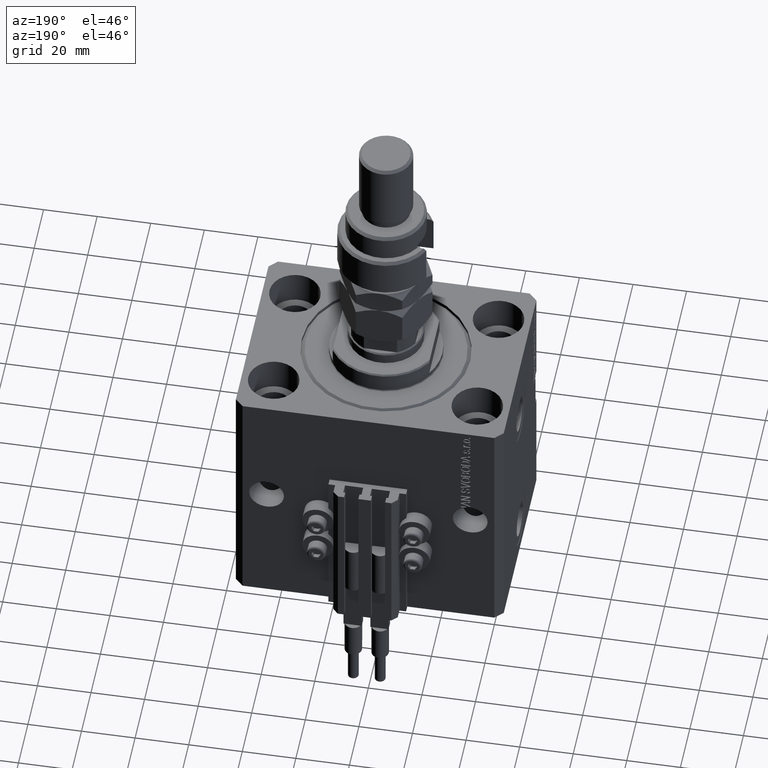
[diagram: clean part render]
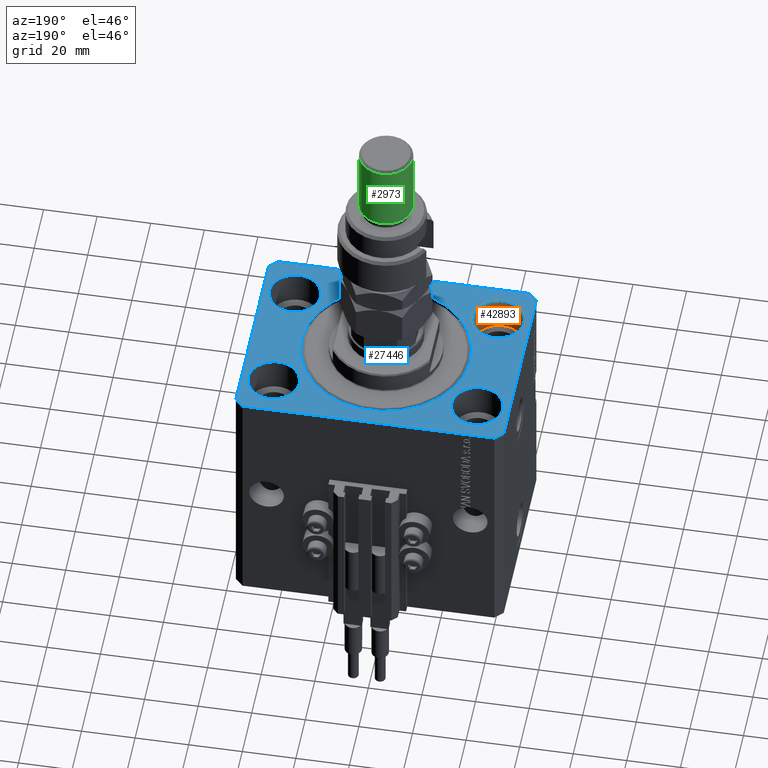
[diagram: same view with three faces highlighted in distinct colors, each labeled with its STEP entity id]
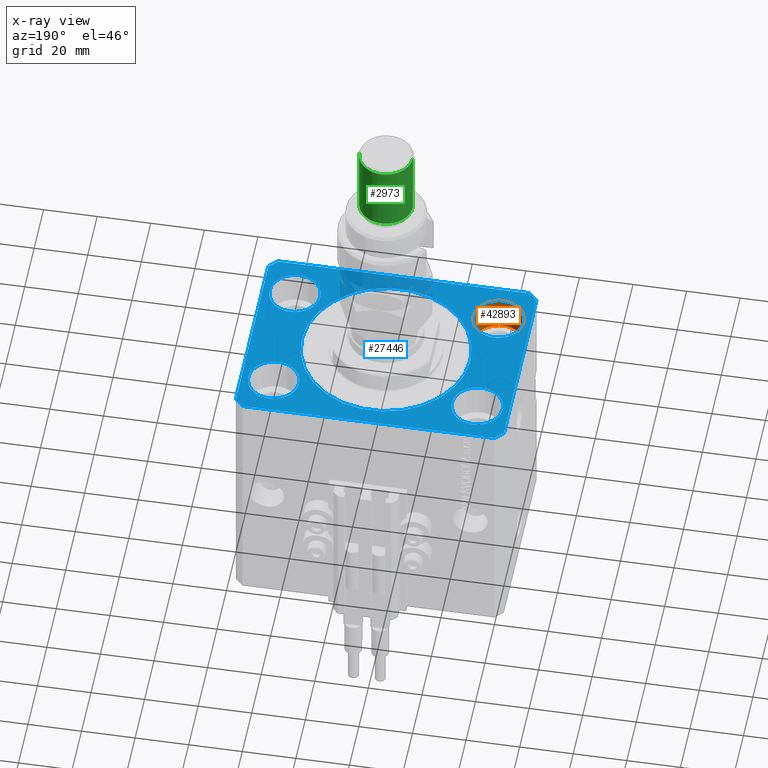
[diagram: x-ray of the same camera — body ghosted, the three highlighted faces saturated]
A machine part, auxiliary view with three faces highlighted in distinct colors.
The next image is the same camera in x-ray (body ghosted, the three faces saturated) — at least one of them is partly hidden behind the body in this view.
Their STEP definitions:

[orange] entity #42893 — the highlighted cylindrical surface (edge-blend (fillet) strip) has radius 9.5 mm, axis along (0, 0, 1).
#404 = CARTESIAN_POINT ( 'NONE',  ( -28.50000000000000355, -22.50000000000000000, -13.00000000000000000 ) ) ;
#1322 = CARTESIAN_POINT ( 'NONE',  ( -47.50000000000000711, -22.50000000000000000, 0.000000000000000000 ) ) ;
#7118 = EDGE_CURVE ( 'NONE', #12849, #47217, #32255, .T. ) ;
#7318 = CARTESIAN_POINT ( 'NONE',  ( -28.50000000000000355, -22.50000000000000000, 0.000000000000000000 ) ) ;
#9910 = AXIS2_PLACEMENT_3D ( 'NONE', #10055, #10308, #25871 ) ;
#10055 = CARTESIAN_POINT ( 'NONE',  ( -38.00000000000000711, -22.50000000000000000, 0.000000000000000000 ) ) ;
#10308 = DIRECTION ( 'NONE',  ( 0.000000000000000000, 0.000000000000000000, 1.000000000000000000 ) ) ;
#10961 = CIRCLE ( 'NONE', #20061, 9.500000000000001776 ) ;
#11100 = VECTOR ( 'NONE', #42899, 1000.000000000000000 ) ;
#11342 = CARTESIAN_POINT ( 'NONE',  ( -28.50000000000000355, -22.50000000000000000, -13.00000000000000000 ) ) ;
#12849 = VERTEX_POINT ( 'NONE', #1322 ) ;
#14329 = ORIENTED_EDGE ( 'NONE', *, *, #36053, .T. ) ;
#17175 = VECTOR ( 'NONE', #50529, 1000.000000000000000 ) ;
#18199 = DIRECTION ( 'NONE',  ( -0.000000000000000000, -0.000000000000000000, 1.000000000000000000 ) ) ;
#18747 = EDGE_CURVE ( 'NONE', #31884, #47217, #37789, .T. ) ;
#20061 = AXIS2_PLACEMENT_3D ( 'NONE', #48910, #29168, #41366 ) ;
#22663 = EDGE_LOOP ( 'NONE', ( #25023, #14329, #46926, #38348 ) ) ;
#22923 = LINE ( 'NONE', #35352, #11100 ) ;
#25023 = ORIENTED_EDGE ( 'NONE', *, *, #32462, .F. ) ;
#25871 = DIRECTION ( 'NONE',  ( 1.000000000000000000, 0.000000000000000000, 0.000000000000000000 ) ) ;
#29168 = DIRECTION ( 'NONE',  ( 0.000000000000000000, 0.000000000000000000, 1.000000000000000000 ) ) ;
#31755 = AXIS2_PLACEMENT_3D ( 'NONE', #37898, #18199, #49863 ) ;
#31884 = VERTEX_POINT ( 'NONE', #404 ) ;
#32255 = CIRCLE ( 'NONE', #9910, 9.500000000000001776 ) ;
#32462 = EDGE_CURVE ( 'NONE', #44184, #31884, #10961, .T. ) ;
#35352 = CARTESIAN_POINT ( 'NONE',  ( -47.50000000000000711, -22.50000000000000000, -13.00000000000000000 ) ) ;
#36053 = EDGE_CURVE ( 'NONE', #44184, #12849, #22923, .T. ) ;
#37789 = LINE ( 'NONE', #11342, #17175 ) ;
#37898 = CARTESIAN_POINT ( 'NONE',  ( -38.00000000000000711, -22.50000000000000000, -13.00000000000000000 ) ) ;
#38348 = ORIENTED_EDGE ( 'NONE', *, *, #18747, .F. ) ;
#38863 = CYLINDRICAL_SURFACE ( 'NONE', #31755, 9.500000000000001776 ) ;
#40571 = CARTESIAN_POINT ( 'NONE',  ( -47.50000000000000711, -22.50000000000000000, -13.00000000000000000 ) ) ;
#41366 = DIRECTION ( 'NONE',  ( 1.000000000000000000, 0.000000000000000000, 0.000000000000000000 ) ) ;
#41807 = FACE_OUTER_BOUND ( 'NONE', #22663, .T. ) ;
#42893 = ADVANCED_FACE ( 'NONE', ( #41807 ), #38863, .F. ) ;
#42899 = DIRECTION ( 'NONE',  ( -0.000000000000000000, -0.000000000000000000, 1.000000000000000000 ) ) ;
#44184 = VERTEX_POINT ( 'NONE', #40571 ) ;
#46926 = ORIENTED_EDGE ( 'NONE', *, *, #7118, .T. ) ;
#47217 = VERTEX_POINT ( 'NONE', #7318 ) ;
#48910 = CARTESIAN_POINT ( 'NONE',  ( -38.00000000000000711, -22.50000000000000000, -13.00000000000000000 ) ) ;
#49863 = DIRECTION ( 'NONE',  ( 1.000000000000000000, 0.000000000000000000, 0.000000000000000000 ) ) ;
#50529 = DIRECTION ( 'NONE',  ( -0.000000000000000000, -0.000000000000000000, 1.000000000000000000 ) ) ;

[blue] entity #27446 — the highlighted planar face has unit normal (0, 0, 1).
#60 = DIRECTION ( 'NONE',  ( -1.000000000000000000, 7.381802025433175941E-17, 0.000000000000000000 ) ) ;
#278 = EDGE_LOOP ( 'NONE', ( #39219, #3195 ) ) ;
#375 = DIRECTION ( 'NONE',  ( 0.7071067811865483499, 0.7071067811865466846, 0.000000000000000000 ) ) ;
#400 = EDGE_CURVE ( 'NONE', #10632, #27512, #4639, .T. ) ;
#520 = VERTEX_POINT ( 'NONE', #28963 ) ;
#667 = VECTOR ( 'NONE', #14344, 1000.000000000000000 ) ;
#703 = DIRECTION ( 'NONE',  ( 0.000000000000000000, 0.000000000000000000, 1.000000000000000000 ) ) ;
#1109 = VERTEX_POINT ( 'NONE', #24063 ) ;
#1322 = CARTESIAN_POINT ( 'NONE',  ( -47.50000000000000711, -22.50000000000000000, 0.000000000000000000 ) ) ;
#1982 = CARTESIAN_POINT ( 'NONE',  ( 38.00000000000000711, 22.50000000000001421, 0.000000000000000000 ) ) ;
#1998 = CIRCLE ( 'NONE', #50895, 9.500000000000001776 ) ;
#2166 = AXIS2_PLACEMENT_3D ( 'NONE', #48176, #703, #20674 ) ;
#2345 = VERTEX_POINT ( 'NONE', #5594 ) ;
#2504 = CARTESIAN_POINT ( 'NONE',  ( -31.50000000000000000, 3.857637417314162689E-15, 0.000000000000000000 ) ) ;
#2685 = CARTESIAN_POINT ( 'NONE',  ( 50.00000000000000000, -34.50000000000000711, 0.000000000000000000 ) ) ;
#2817 = EDGE_CURVE ( 'NONE', #21738, #26168, #28773, .T. ) ;
#2998 = DIRECTION ( 'NONE',  ( 0.000000000000000000, 0.000000000000000000, 1.000000000000000000 ) ) ;
#3166 = DIRECTION ( 'NONE',  ( 0.000000000000000000, 0.000000000000000000, 1.000000000000000000 ) ) ;
#3195 = ORIENTED_EDGE ( 'NONE', *, *, #23839, .F. ) ;
#3579 = AXIS2_PLACEMENT_3D ( 'NONE', #39577, #11338, #43752 ) ;
#4639 = CIRCLE ( 'NONE', #2166, 9.500000000000001776 ) ;
#5369 = DIRECTION ( 'NONE',  ( 2.011273595335428326E-16, -1.000000000000000000, 0.000000000000000000 ) ) ;
#5594 = CARTESIAN_POINT ( 'NONE',  ( 47.00000000000000000, -37.50000000000000711, 0.000000000000000000 ) ) ;
#5601 = EDGE_CURVE ( 'NONE', #27512, #10632, #13971, .T. ) ;
#5621 = DIRECTION ( 'NONE',  ( 0.000000000000000000, 0.000000000000000000, 1.000000000000000000 ) ) ;
#6557 = DIRECTION ( 'NONE',  ( 1.000000000000000000, 0.000000000000000000, 0.000000000000000000 ) ) ;
#6712 = CARTESIAN_POINT ( 'NONE',  ( -47.50000000000000711, 22.50000000000000000, 0.000000000000000000 ) ) ;
#7030 = ORIENTED_EDGE ( 'NONE', *, *, #2817, .F. ) ;
#7064 = CARTESIAN_POINT ( 'NONE',  ( 0.000000000000000000, 0.000000000000000000, 0.000000000000000000 ) ) ;
#7118 = EDGE_CURVE ( 'NONE', #12849, #47217, #32255, .T. ) ;
#7318 = CARTESIAN_POINT ( 'NONE',  ( -28.50000000000000355, -22.50000000000000000, 0.000000000000000000 ) ) ;
#7597 = LINE ( 'NONE', #39979, #9294 ) ;
#7842 = CIRCLE ( 'NONE', #38519, 9.500000000000001776 ) ;
#8070 = ORIENTED_EDGE ( 'NONE', *, *, #49599, .F. ) ;
#8210 = AXIS2_PLACEMENT_3D ( 'NONE', #50373, #42570, #37895 ) ;
#9118 = EDGE_LOOP ( 'NONE', ( #24640, #37366 ) ) ;
#9294 = VECTOR ( 'NONE', #60, 1000.000000000000000 ) ;
#9397 = VECTOR ( 'NONE', #17385, 1000.000000000000114 ) ;
#9813 = LINE ( 'NONE', #24853, #48622 ) ;
#9910 = AXIS2_PLACEMENT_3D ( 'NONE', #10055, #10308, #25871 ) ;
#10055 = CARTESIAN_POINT ( 'NONE',  ( -38.00000000000000711, -22.50000000000000000, 0.000000000000000000 ) ) ;
#10289 = DIRECTION ( 'NONE',  ( 1.000000000000000000, 0.000000000000000000, 0.000000000000000000 ) ) ;
#10308 = DIRECTION ( 'NONE',  ( 0.000000000000000000, 0.000000000000000000, 1.000000000000000000 ) ) ;
#10525 = LINE ( 'NONE', #33609, #11697 ) ;
#10632 = VERTEX_POINT ( 'NONE', #39303 ) ;
#10654 = CARTESIAN_POINT ( 'NONE',  ( 50.00000000000000000, -34.50000000000000711, 0.000000000000000000 ) ) ;
#11338 = DIRECTION ( 'NONE',  ( 0.000000000000000000, 0.000000000000000000, 1.000000000000000000 ) ) ;
#11555 = FACE_BOUND ( 'NONE', #22033, .T. ) ;
#11697 = VECTOR ( 'NONE', #5369, 1000.000000000000000 ) ;
#11958 = EDGE_CURVE ( 'NONE', #46579, #35070, #14932, .T. ) ;
#12673 = VERTEX_POINT ( 'NONE', #23468 ) ;
#12849 = VERTEX_POINT ( 'NONE', #1322 ) ;
#13971 = CIRCLE ( 'NONE', #8210, 9.500000000000001776 ) ;
#14307 = EDGE_CURVE ( 'NONE', #17757, #23993, #15128, .T. ) ;
#14344 = DIRECTION ( 'NONE',  ( -0.7071067811865483499, -0.7071067811865466846, 0.000000000000000000 ) ) ;
#14932 = CIRCLE ( 'NONE', #49714, 9.500000000000001776 ) ;
#15116 = CARTESIAN_POINT ( 'NONE',  ( -47.00000000000001421, 37.50000000000000000, 0.000000000000000000 ) ) ;
#15128 = LINE ( 'NONE', #2685, #46114 ) ;
#16139 = VERTEX_POINT ( 'NONE', #44779 ) ;
#17169 = EDGE_CURVE ( 'NONE', #2345, #17757, #39529, .T. ) ;
#17385 = DIRECTION ( 'NONE',  ( -0.7071067811865361374, 0.7071067811865588970, 0.000000000000000000 ) ) ;
#17496 = EDGE_CURVE ( 'NONE', #12673, #1109, #22644, .T. ) ;
#17757 = VERTEX_POINT ( 'NONE', #10654 ) ;
#18496 = DIRECTION ( 'NONE',  ( 7.441712302741091634E-15, 1.000000000000000000, 0.000000000000000000 ) ) ;
#18677 = EDGE_CURVE ( 'NONE', #43280, #2345, #9813, .T. ) ;
#18987 = DIRECTION ( 'NONE',  ( 1.000000000000000000, 0.000000000000000000, 0.000000000000000000 ) ) ;
#19689 = ORIENTED_EDGE ( 'NONE', *, *, #7118, .F. ) ;
#20544 = VECTOR ( 'NONE', #375, 1000.000000000000000 ) ;
#20674 = DIRECTION ( 'NONE',  ( 1.000000000000000000, 0.000000000000000000, 0.000000000000000000 ) ) ;
#21378 = EDGE_CURVE ( 'NONE', #16139, #43280, #45119, .T. ) ;
#21460 = VERTEX_POINT ( 'NONE', #6712 ) ;
#21514 = CARTESIAN_POINT ( 'NONE',  ( -50.00000000000000000, -34.50000000000000000, 0.000000000000000000 ) ) ;
#21544 = EDGE_LOOP ( 'NONE', ( #38233, #8070 ) ) ;
#21738 = VERTEX_POINT ( 'NONE', #2504 ) ;
#21761 = CARTESIAN_POINT ( 'NONE',  ( 31.50000000000000000, 0.000000000000000000, 0.000000000000000000 ) ) ;
#22033 = EDGE_LOOP ( 'NONE', ( #32452, #19689 ) ) ;
#22107 = CARTESIAN_POINT ( 'NONE',  ( 38.00000000000000711, 22.50000000000001421, 0.000000000000000000 ) ) ;
#22501 = EDGE_CURVE ( 'NONE', #47217, #12849, #51295, .T. ) ;
#22644 = LINE ( 'NONE', #15116, #667 ) ;
#22712 = FACE_BOUND ( 'NONE', #28375, .T. ) ;
#22966 = FACE_BOUND ( 'NONE', #21544, .T. ) ;
#23468 = CARTESIAN_POINT ( 'NONE',  ( -47.00000000000001421, 37.50000000000000000, 0.000000000000000000 ) ) ;
#23839 = EDGE_CURVE ( 'NONE', #35070, #46579, #48026, .T. ) ;
#23983 = AXIS2_PLACEMENT_3D ( 'NONE', #1982, #5621, #25830 ) ;
#23993 = VERTEX_POINT ( 'NONE', #45675 ) ;
#24063 = CARTESIAN_POINT ( 'NONE',  ( -50.00000000000001421, 34.50000000000000000, 0.000000000000000000 ) ) ;
#24640 = ORIENTED_EDGE ( 'NONE', *, *, #400, .F. ) ;
#24853 = CARTESIAN_POINT ( 'NONE',  ( -47.00000000000000000, -37.49999999999999289, 0.000000000000000000 ) ) ;
#25830 = DIRECTION ( 'NONE',  ( 1.000000000000000000, 0.000000000000000000, 0.000000000000000000 ) ) ;
#25871 = DIRECTION ( 'NONE',  ( 1.000000000000000000, 0.000000000000000000, 0.000000000000000000 ) ) ;
#25880 = DIRECTION ( 'NONE',  ( 1.000000000000000000, -1.476360405086644309E-16, 0.000000000000000000 ) ) ;
#25940 = CIRCLE ( 'NONE', #3579, 31.50000000000000000 ) ;
#26168 = VERTEX_POINT ( 'NONE', #21761 ) ;
#26854 = FACE_BOUND ( 'NONE', #9118, .T. ) ;
#27246 = VECTOR ( 'NONE', #48758, 1000.000000000000114 ) ;
#27446 = ADVANCED_FACE ( 'NONE', ( #11555, #26854, #42674, #22966, #22712, #34884 ), #38512, .T. ) ;
#27512 = VERTEX_POINT ( 'NONE', #30224 ) ;
#27980 = EDGE_CURVE ( 'NONE', #50424, #12673, #7597, .T. ) ;
#28375 = EDGE_LOOP ( 'NONE', ( #47746, #7030 ) ) ;
#28773 = CIRCLE ( 'NONE', #43717, 31.50000000000000000 ) ;
#28963 = CARTESIAN_POINT ( 'NONE',  ( -28.50000000000000355, 22.50000000000000000, 0.000000000000000000 ) ) ;
#29910 = EDGE_CURVE ( 'NONE', #1109, #16139, #10525, .T. ) ;
#29945 = CARTESIAN_POINT ( 'NONE',  ( -38.00000000000000711, 22.50000000000000000, 0.000000000000000000 ) ) ;
#30140 = DIRECTION ( 'NONE',  ( 0.000000000000000000, 0.000000000000000000, 1.000000000000000000 ) ) ;
#30224 = CARTESIAN_POINT ( 'NONE',  ( 28.50000000000000355, -22.50000000000000000, 0.000000000000000000 ) ) ;
#30357 = DIRECTION ( 'NONE',  ( 0.000000000000000000, 0.000000000000000000, 1.000000000000000000 ) ) ;
#30381 = ORIENTED_EDGE ( 'NONE', *, *, #18677, .T. ) ;
#31351 = CARTESIAN_POINT ( 'NONE',  ( 47.50000000000000711, 22.50000000000001421, 0.000000000000000000 ) ) ;
#32255 = CIRCLE ( 'NONE', #9910, 9.500000000000001776 ) ;
#32452 = ORIENTED_EDGE ( 'NONE', *, *, #22501, .F. ) ;
#33075 = DIRECTION ( 'NONE',  ( 0.000000000000000000, 0.000000000000000000, 1.000000000000000000 ) ) ;
#33609 = CARTESIAN_POINT ( 'NONE',  ( -50.00000000000001421, 34.50000000000000000, 0.000000000000000000 ) ) ;
#33763 = EDGE_CURVE ( 'NONE', #23993, #50424, #38555, .T. ) ;
#33880 = CARTESIAN_POINT ( 'NONE',  ( -38.00000000000000711, -22.50000000000000000, 0.000000000000000000 ) ) ;
#34005 = EDGE_CURVE ( 'NONE', #26168, #21738, #25940, .T. ) ;
#34365 = DIRECTION ( 'NONE',  ( 1.000000000000000000, 0.000000000000000000, -0.000000000000000000 ) ) ;
#34884 = FACE_OUTER_BOUND ( 'NONE', #42895, .T. ) ;
#35070 = VERTEX_POINT ( 'NONE', #45252 ) ;
#35170 = ORIENTED_EDGE ( 'NONE', *, *, #17169, .T. ) ;
#35682 = ORIENTED_EDGE ( 'NONE', *, *, #14307, .T. ) ;
#37366 = ORIENTED_EDGE ( 'NONE', *, *, #5601, .F. ) ;
#37895 = DIRECTION ( 'NONE',  ( 1.000000000000000000, 0.000000000000000000, 0.000000000000000000 ) ) ;
#38233 = ORIENTED_EDGE ( 'NONE', *, *, #46805, .F. ) ;
#38512 = PLANE ( 'NONE',  #41538 ) ;
#38519 = AXIS2_PLACEMENT_3D ( 'NONE', #38640, #30357, #46203 ) ;
#38555 = LINE ( 'NONE', #48790, #9397 ) ;
#38640 = CARTESIAN_POINT ( 'NONE',  ( -38.00000000000000711, 22.50000000000000000, 0.000000000000000000 ) ) ;
#39219 = ORIENTED_EDGE ( 'NONE', *, *, #11958, .F. ) ;
#39303 = CARTESIAN_POINT ( 'NONE',  ( 47.50000000000000711, -22.50000000000000000, 0.000000000000000000 ) ) ;
#39529 = LINE ( 'NONE', #43188, #20544 ) ;
#39577 = CARTESIAN_POINT ( 'NONE',  ( 0.000000000000000000, 0.000000000000000000, 0.000000000000000000 ) ) ;
#39979 = CARTESIAN_POINT ( 'NONE',  ( 47.00000000000056843, 37.49999999999999289, 0.000000000000000000 ) ) ;
#41168 = DIRECTION ( 'NONE',  ( 0.000000000000000000, 0.000000000000000000, 1.000000000000000000 ) ) ;
#41538 = AXIS2_PLACEMENT_3D ( 'NONE', #41899, #2998, #34365 ) ;
#41687 = ORIENTED_EDGE ( 'NONE', *, *, #33763, .T. ) ;
#41899 = CARTESIAN_POINT ( 'NONE',  ( 0.000000000000000000, 0.000000000000000000, 0.000000000000000000 ) ) ;
#42028 = ORIENTED_EDGE ( 'NONE', *, *, #27980, .T. ) ;
#42570 = DIRECTION ( 'NONE',  ( 0.000000000000000000, 0.000000000000000000, 1.000000000000000000 ) ) ;
#42674 = FACE_BOUND ( 'NONE', #278, .T. ) ;
#42895 = EDGE_LOOP ( 'NONE', ( #42028, #48286, #48838, #45665, #30381, #35170, #35682, #41687 ) ) ;
#43188 = CARTESIAN_POINT ( 'NONE',  ( 47.00000000000000000, -37.50000000000000711, 0.000000000000000000 ) ) ;
#43280 = VERTEX_POINT ( 'NONE', #51271 ) ;
#43717 = AXIS2_PLACEMENT_3D ( 'NONE', #7064, #3166, #18987 ) ;
#43752 = DIRECTION ( 'NONE',  ( 1.000000000000000000, 0.000000000000000000, 0.000000000000000000 ) ) ;
#44158 = CARTESIAN_POINT ( 'NONE',  ( 47.00000000000056843, 37.49999999999999289, 0.000000000000000000 ) ) ;
#44779 = CARTESIAN_POINT ( 'NONE',  ( -50.00000000000000000, -34.50000000000000000, 0.000000000000000000 ) ) ;
#45119 = LINE ( 'NONE', #21514, #27246 ) ;
#45252 = CARTESIAN_POINT ( 'NONE',  ( 28.50000000000000355, 22.50000000000001421, 0.000000000000000000 ) ) ;
#45665 = ORIENTED_EDGE ( 'NONE', *, *, #21378, .T. ) ;
#45675 = CARTESIAN_POINT ( 'NONE',  ( 50.00000000000051870, 34.49999999999995026, 0.000000000000000000 ) ) ;
#46114 = VECTOR ( 'NONE', #18496, 1000.000000000000000 ) ;
#46203 = DIRECTION ( 'NONE',  ( 1.000000000000000000, 0.000000000000000000, 0.000000000000000000 ) ) ;
#46579 = VERTEX_POINT ( 'NONE', #31351 ) ;
#46805 = EDGE_CURVE ( 'NONE', #520, #21460, #1998, .T. ) ;
#47217 = VERTEX_POINT ( 'NONE', #7318 ) ;
#47746 = ORIENTED_EDGE ( 'NONE', *, *, #34005, .F. ) ;
#48026 = CIRCLE ( 'NONE', #23983, 9.500000000000001776 ) ;
#48176 = CARTESIAN_POINT ( 'NONE',  ( 38.00000000000000711, -22.50000000000000000, 0.000000000000000000 ) ) ;
#48286 = ORIENTED_EDGE ( 'NONE', *, *, #17496, .T. ) ;
#48622 = VECTOR ( 'NONE', #25880, 1000.000000000000000 ) ;
#48758 = DIRECTION ( 'NONE',  ( 0.7071067811865491270, -0.7071067811865459074, 0.000000000000000000 ) ) ;
#48790 = CARTESIAN_POINT ( 'NONE',  ( 50.00000000000051870, 34.49999999999995026, 0.000000000000000000 ) ) ;
#48838 = ORIENTED_EDGE ( 'NONE', *, *, #29910, .T. ) ;
#48922 = DIRECTION ( 'NONE',  ( 1.000000000000000000, 0.000000000000000000, 0.000000000000000000 ) ) ;
#49599 = EDGE_CURVE ( 'NONE', #21460, #520, #7842, .T. ) ;
#49665 = AXIS2_PLACEMENT_3D ( 'NONE', #33880, #41168, #10289 ) ;
#49714 = AXIS2_PLACEMENT_3D ( 'NONE', #22107, #30140, #6557 ) ;
#50373 = CARTESIAN_POINT ( 'NONE',  ( 38.00000000000000711, -22.50000000000000000, 0.000000000000000000 ) ) ;
#50424 = VERTEX_POINT ( 'NONE', #44158 ) ;
#50895 = AXIS2_PLACEMENT_3D ( 'NONE', #29945, #33075, #48922 ) ;
#51271 = CARTESIAN_POINT ( 'NONE',  ( -47.00000000000000000, -37.49999999999999289, 0.000000000000000000 ) ) ;
#51295 = CIRCLE ( 'NONE', #49665, 9.500000000000001776 ) ;

[green] entity #2973 — the highlighted cylindrical surface (edge-blend (fillet) strip) has radius 10 mm, axis along (-0, -0, -1).
#607 = AXIS2_PLACEMENT_3D ( 'NONE', #36565, #44373, #8834 ) ;
#947 = VECTOR ( 'NONE', #35968, 1000.000000000000000 ) ;
#1752 = EDGE_CURVE ( 'NONE', #40377, #13697, #19637, .T. ) ;
#2973 = ADVANCED_FACE ( 'NONE', ( #43877 ), #12723, .T. ) ;
#3292 = VERTEX_POINT ( 'NONE', #44512 ) ;
#3639 = CARTESIAN_POINT ( 'NONE',  ( -10.00000000000000000, 0.000000000000000000, 29.00000000000000711 ) ) ;
#4160 = VERTEX_POINT ( 'NONE', #3639 ) ;
#5721 = CARTESIAN_POINT ( 'NONE',  ( 0.000000000000000000, 0.000000000000000000, 54.99999999999998579 ) ) ;
#7529 = LINE ( 'NONE', #23344, #24580 ) ;
#8739 = ORIENTED_EDGE ( 'NONE', *, *, #30771, .F. ) ;
#8834 = DIRECTION ( 'NONE',  ( -1.000000000000000000, 0.000000000000000000, 0.000000000000000000 ) ) ;
#10282 = EDGE_CURVE ( 'NONE', #3292, #4160, #28141, .T. ) ;
#11203 = ORIENTED_EDGE ( 'NONE', *, *, #1752, .T. ) ;
#12023 = DIRECTION ( 'NONE',  ( 1.000000000000000000, 0.000000000000000000, 0.000000000000000000 ) ) ;
#12723 = CYLINDRICAL_SURFACE ( 'NONE', #607, 10.00000000000000000 ) ;
#13697 = VERTEX_POINT ( 'NONE', #34495 ) ;
#13890 = EDGE_CURVE ( 'NONE', #13697, #3292, #7529, .T. ) ;
#14574 = ORIENTED_EDGE ( 'NONE', *, *, #13890, .T. ) ;
#15494 = AXIS2_PLACEMENT_3D ( 'NONE', #5721, #39758, #12023 ) ;
#15731 = EDGE_LOOP ( 'NONE', ( #11203, #14574, #37192, #8739 ) ) ;
#19637 = CIRCLE ( 'NONE', #15494, 10.00000000000000000 ) ;
#20169 = LINE ( 'NONE', #48178, #947 ) ;
#22340 = AXIS2_PLACEMENT_3D ( 'NONE', #35478, #24833, #47681 ) ;
#23344 = CARTESIAN_POINT ( 'NONE',  ( 10.00000000000000000, 1.224646799147353256E-15, 56.00000000000000711 ) ) ;
#24580 = VECTOR ( 'NONE', #39148, 1000.000000000000000 ) ;
#24833 = DIRECTION ( 'NONE',  ( -0.000000000000000000, -0.000000000000000000, 1.000000000000000000 ) ) ;
#28141 = CIRCLE ( 'NONE', #22340, 10.00000000000000000 ) ;
#30771 = EDGE_CURVE ( 'NONE', #40377, #4160, #20169, .T. ) ;
#34495 = CARTESIAN_POINT ( 'NONE',  ( 10.00000000000000000, 1.224646799147353256E-15, 54.99999999999998579 ) ) ;
#35478 = CARTESIAN_POINT ( 'NONE',  ( 0.000000000000000000, 0.000000000000000000, 29.00000000000000711 ) ) ;
#35968 = DIRECTION ( 'NONE',  ( -0.000000000000000000, -0.000000000000000000, -1.000000000000000000 ) ) ;
#36565 = CARTESIAN_POINT ( 'NONE',  ( 0.000000000000000000, 0.000000000000000000, 56.00000000000000711 ) ) ;
#37192 = ORIENTED_EDGE ( 'NONE', *, *, #10282, .T. ) ;
#38586 = CARTESIAN_POINT ( 'NONE',  ( -10.00000000000000000, 0.000000000000000000, 54.99999999999998579 ) ) ;
#39148 = DIRECTION ( 'NONE',  ( -0.000000000000000000, -0.000000000000000000, -1.000000000000000000 ) ) ;
#39758 = DIRECTION ( 'NONE',  ( 0.000000000000000000, 0.000000000000000000, -1.000000000000000000 ) ) ;
#40377 = VERTEX_POINT ( 'NONE', #38586 ) ;
#43877 = FACE_OUTER_BOUND ( 'NONE', #15731, .T. ) ;
#44373 = DIRECTION ( 'NONE',  ( -0.000000000000000000, -0.000000000000000000, -1.000000000000000000 ) ) ;
#44512 = CARTESIAN_POINT ( 'NONE',  ( 10.00000000000000000, 1.224646799147353256E-15, 29.00000000000000711 ) ) ;
#47681 = DIRECTION ( 'NONE',  ( 1.000000000000000000, 0.000000000000000000, 0.000000000000000000 ) ) ;
#48178 = CARTESIAN_POINT ( 'NONE',  ( -10.00000000000000000, 0.000000000000000000, 56.00000000000000711 ) ) ;